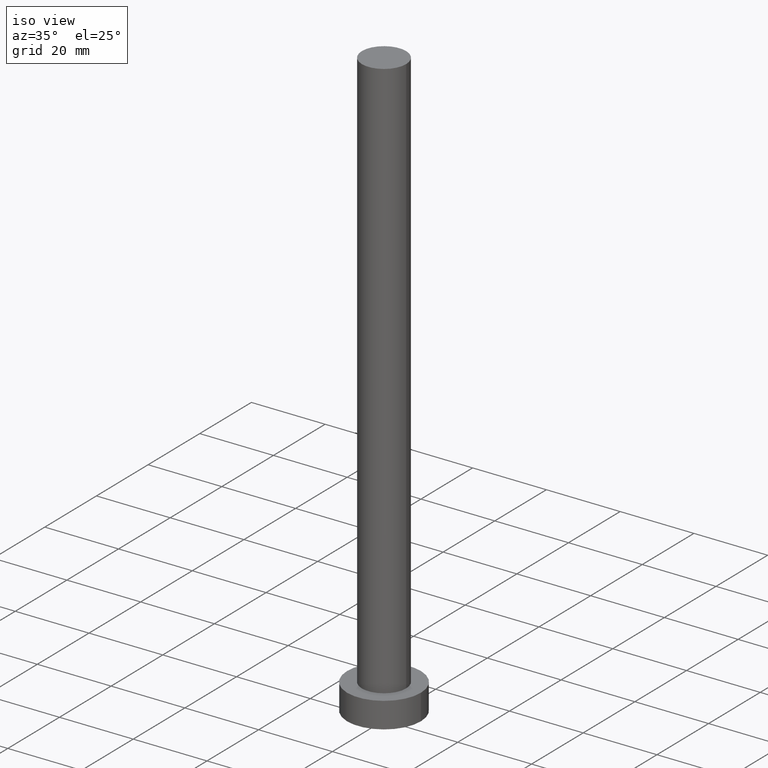
[diagram: clean part render]
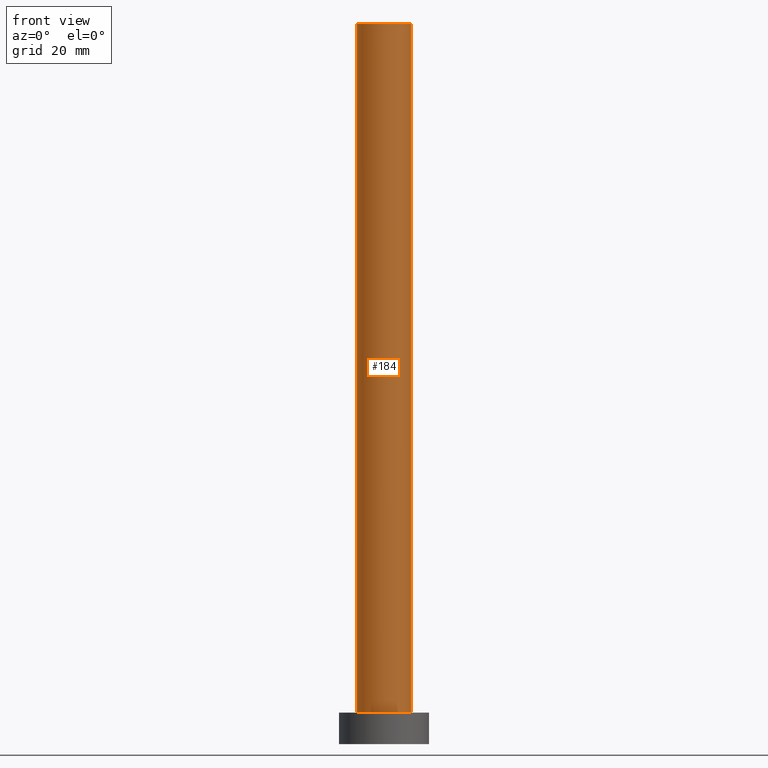
[diagram: tour spotlight — one face highlighted and labeled with its STEP entity id]
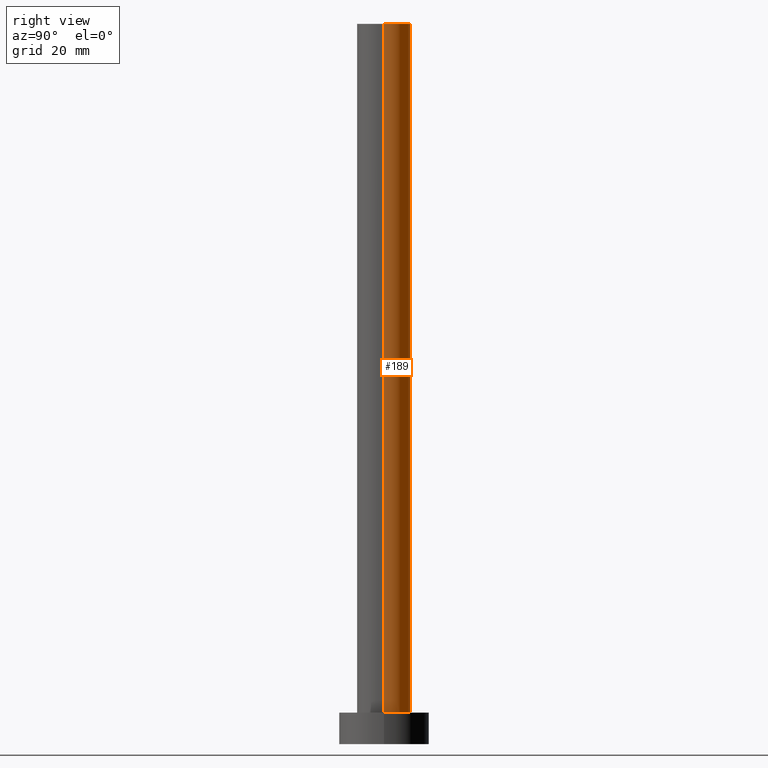
[diagram: tour spotlight — one face highlighted and labeled with its STEP entity id]
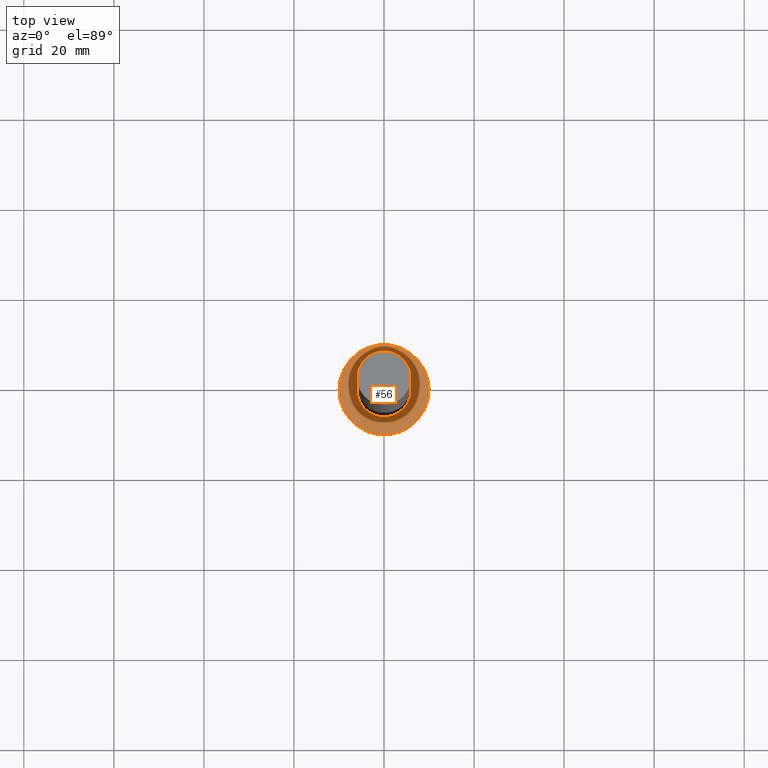
[diagram: tour spotlight — one face highlighted and labeled with its STEP entity id]
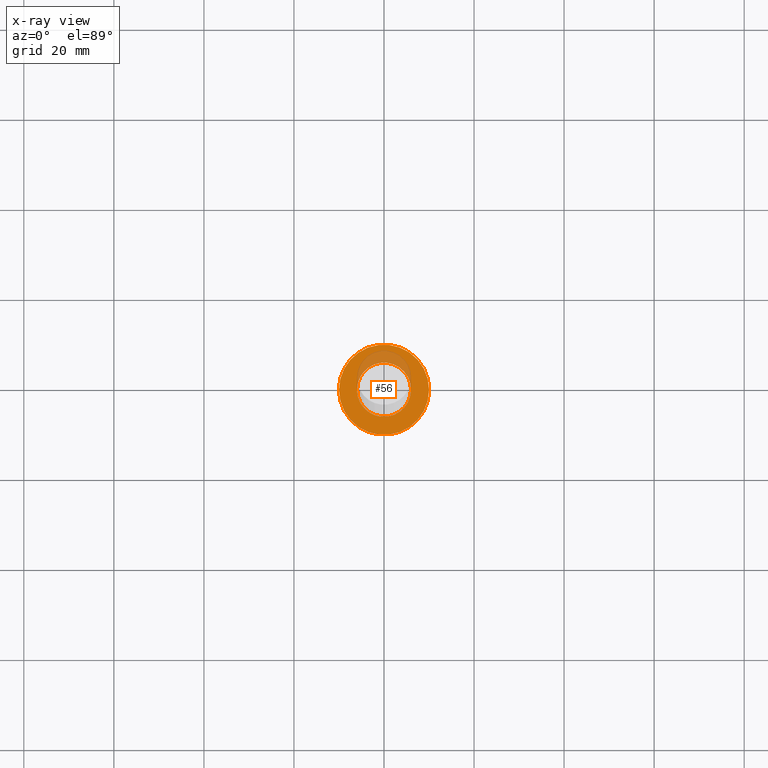
[diagram: x-ray of the same camera — body ghosted, this tour face saturated]
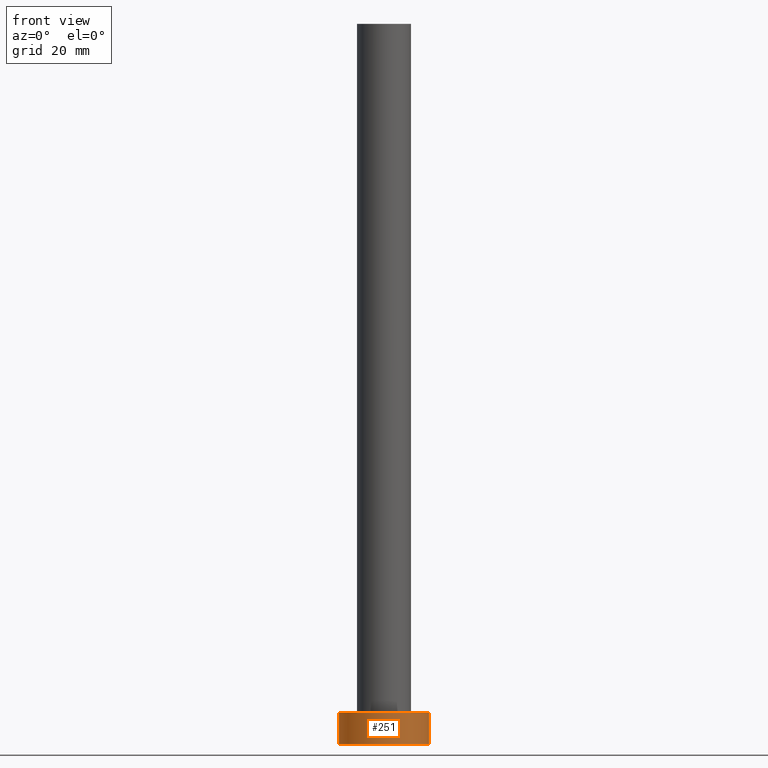
[diagram: tour spotlight — one face highlighted and labeled with its STEP entity id]
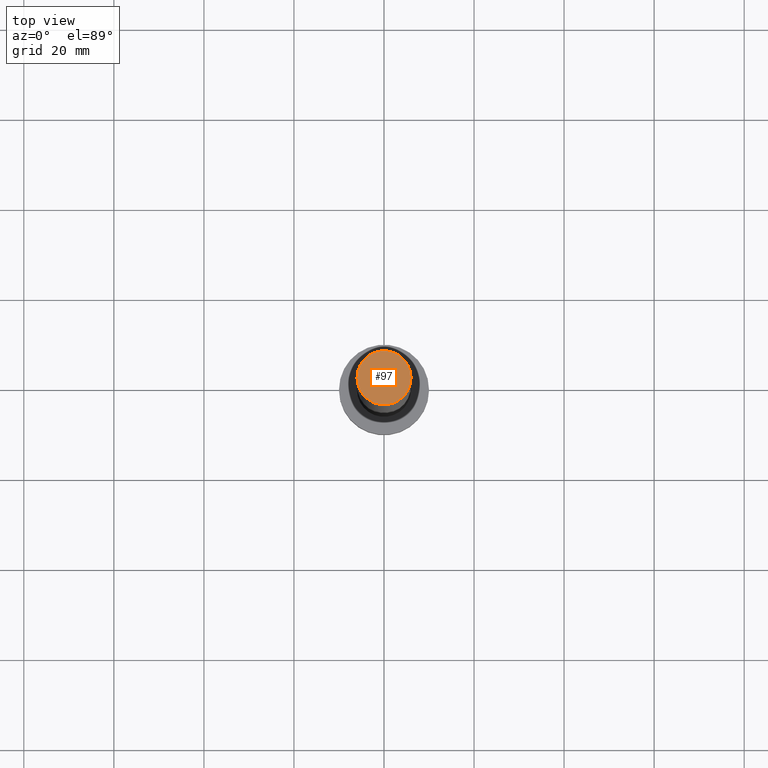
[diagram: tour spotlight — one face highlighted and labeled with its STEP entity id]
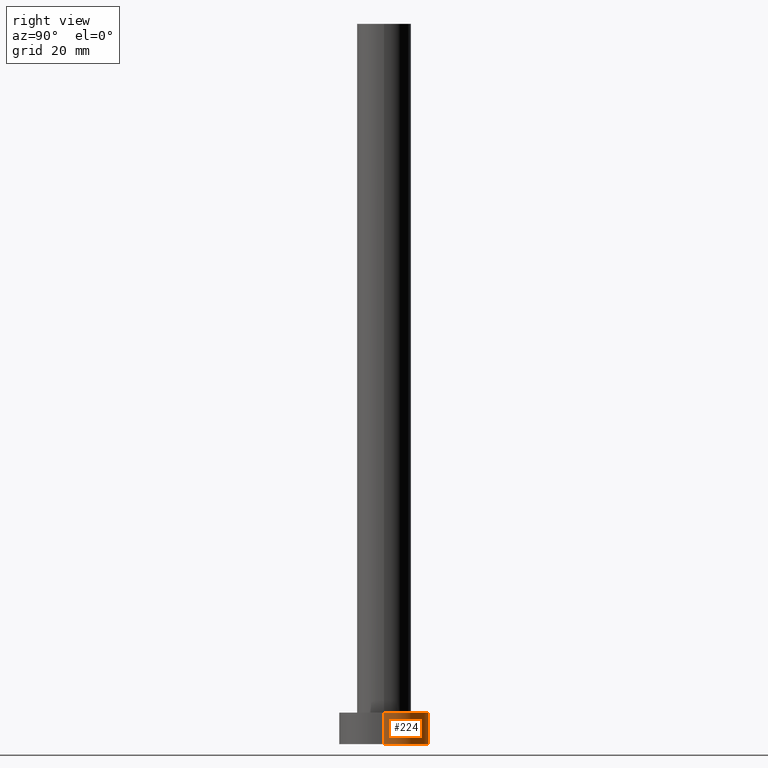
[diagram: tour spotlight — one face highlighted and labeled with its STEP entity id]
A machine part: a face-by-face anatomy tour. The part has 7 B-rep faces; the first image is the clean iso view, then the 6 largest visible faces are spotlighted one at a time (largest first), each with its STEP entity span.

Face 1 — front view, entity #184. In plain terms, the highlighted cylindrical surface (edge-blend (fillet) strip) has radius 6 mm, axis along (-0, -0, -1).
Definition (entity closure, byte-faithful):
#13 = EDGE_CURVE ( 'NONE', #92, #37, #130, .T. ) ;
#19 = DIRECTION ( 'NONE',  ( 1.000000000000000000, 0.000000000000000000, 0.000000000000000000 ) ) ;
#30 = CIRCLE ( 'NONE', #174, 6.000000000000000888 ) ;
#37 = VERTEX_POINT ( 'NONE', #96 ) ;
#42 = DIRECTION ( 'NONE',  ( -0.000000000000000000, -0.000000000000000000, -1.000000000000000000 ) ) ;
#59 = CARTESIAN_POINT ( 'NONE',  ( 0.000000000000000000, 0.000000000000000000, 160.0000000000000000 ) ) ;
#60 = CARTESIAN_POINT ( 'NONE',  ( 0.000000000000000000, 0.000000000000000000, 7.000000000000000000 ) ) ;
#63 = DIRECTION ( 'NONE',  ( 1.000000000000000000, 0.000000000000000000, 0.000000000000000000 ) ) ;
#64 = LINE ( 'NONE', #154, #65 ) ;
#65 = VECTOR ( 'NONE', #42, 1000.000000000000000 ) ;
#66 = EDGE_CURVE ( 'NONE', #92, #206, #30, .T. ) ;
#71 = ORIENTED_EDGE ( 'NONE', *, *, #146, .F. ) ;
#73 = VERTEX_POINT ( 'NONE', #162 ) ;
#92 = VERTEX_POINT ( 'NONE', #197 ) ;
#94 = DIRECTION ( 'NONE',  ( -0.000000000000000000, -0.000000000000000000, -1.000000000000000000 ) ) ;
#96 = CARTESIAN_POINT ( 'NONE',  ( -6.000000000000000888, 0.000000000000000000, 7.000000000000000000 ) ) ;
#109 = ORIENTED_EDGE ( 'NONE', *, *, #66, .F. ) ;
#110 = EDGE_CURVE ( 'NONE', #37, #73, #192, .T. ) ;
#111 = ORIENTED_EDGE ( 'NONE', *, *, #13, .T. ) ;
#112 = VECTOR ( 'NONE', #94, 1000.000000000000000 ) ;
#117 = AXIS2_PLACEMENT_3D ( 'NONE', #60, #215, #63 ) ;
#121 = CYLINDRICAL_SURFACE ( 'NONE', #205, 6.000000000000000888 ) ;
#130 = LINE ( 'NONE', #172, #112 ) ;
#136 = DIRECTION ( 'NONE',  ( -1.000000000000000000, 0.000000000000000000, 0.000000000000000000 ) ) ;
#140 = CARTESIAN_POINT ( 'NONE',  ( 0.000000000000000000, 0.000000000000000000, 160.0000000000000000 ) ) ;
#146 = EDGE_CURVE ( 'NONE', #206, #73, #64, .T. ) ;
#154 = CARTESIAN_POINT ( 'NONE',  ( 6.000000000000000888, 7.347880794884120722E-16, 160.0000000000000000 ) ) ;
#162 = CARTESIAN_POINT ( 'NONE',  ( 6.000000000000000888, 7.347880794884120722E-16, 7.000000000000000000 ) ) ;
#172 = CARTESIAN_POINT ( 'NONE',  ( -6.000000000000000888, 0.000000000000000000, 160.0000000000000000 ) ) ;
#173 = EDGE_LOOP ( 'NONE', ( #71, #109, #111, #190 ) ) ;
#174 = AXIS2_PLACEMENT_3D ( 'NONE', #59, #232, #19 ) ;
#179 = DIRECTION ( 'NONE',  ( -0.000000000000000000, -0.000000000000000000, -1.000000000000000000 ) ) ;
#184 = ADVANCED_FACE ( 'NONE', ( #200 ), #121, .T. ) ;
#190 = ORIENTED_EDGE ( 'NONE', *, *, #110, .T. ) ;
#192 = CIRCLE ( 'NONE', #117, 6.000000000000000888 ) ;
#197 = CARTESIAN_POINT ( 'NONE',  ( -6.000000000000000888, 0.000000000000000000, 160.0000000000000000 ) ) ;
#200 = FACE_OUTER_BOUND ( 'NONE', #173, .T. ) ;
#205 = AXIS2_PLACEMENT_3D ( 'NONE', #140, #179, #136 ) ;
#206 = VERTEX_POINT ( 'NONE', #236 ) ;
#215 = DIRECTION ( 'NONE',  ( 0.000000000000000000, 0.000000000000000000, 1.000000000000000000 ) ) ;
#232 = DIRECTION ( 'NONE',  ( 0.000000000000000000, 0.000000000000000000, 1.000000000000000000 ) ) ;
#236 = CARTESIAN_POINT ( 'NONE',  ( 6.000000000000000888, 7.347880794884120722E-16, 160.0000000000000000 ) ) ;

Face 2 — right view, entity #189. In plain terms, the highlighted cylindrical surface (edge-blend (fillet) strip) has radius 6 mm, axis along (-0, -0, -1).
Definition (entity closure, byte-faithful):
#4 = EDGE_CURVE ( 'NONE', #73, #37, #68, .T. ) ;
#13 = EDGE_CURVE ( 'NONE', #92, #37, #130, .T. ) ;
#22 = CIRCLE ( 'NONE', #55, 6.000000000000000888 ) ;
#37 = VERTEX_POINT ( 'NONE', #96 ) ;
#38 = DIRECTION ( 'NONE',  ( 0.000000000000000000, 0.000000000000000000, 1.000000000000000000 ) ) ;
#42 = DIRECTION ( 'NONE',  ( -0.000000000000000000, -0.000000000000000000, -1.000000000000000000 ) ) ;
#48 = AXIS2_PLACEMENT_3D ( 'NONE', #99, #176, #253 ) ;
#50 = EDGE_LOOP ( 'NONE', ( #249, #230, #54, #148 ) ) ;
#51 = DIRECTION ( 'NONE',  ( 0.000000000000000000, 0.000000000000000000, 1.000000000000000000 ) ) ;
#54 = ORIENTED_EDGE ( 'NONE', *, *, #4, .T. ) ;
#55 = AXIS2_PLACEMENT_3D ( 'NONE', #238, #38, #115 ) ;
#62 = FACE_OUTER_BOUND ( 'NONE', #50, .T. ) ;
#64 = LINE ( 'NONE', #154, #65 ) ;
#65 = VECTOR ( 'NONE', #42, 1000.000000000000000 ) ;
#68 = CIRCLE ( 'NONE', #143, 6.000000000000000888 ) ;
#73 = VERTEX_POINT ( 'NONE', #162 ) ;
#92 = VERTEX_POINT ( 'NONE', #197 ) ;
#94 = DIRECTION ( 'NONE',  ( -0.000000000000000000, -0.000000000000000000, -1.000000000000000000 ) ) ;
#96 = CARTESIAN_POINT ( 'NONE',  ( -6.000000000000000888, 0.000000000000000000, 7.000000000000000000 ) ) ;
#98 = CYLINDRICAL_SURFACE ( 'NONE', #48, 6.000000000000000888 ) ;
#99 = CARTESIAN_POINT ( 'NONE',  ( 0.000000000000000000, 0.000000000000000000, 160.0000000000000000 ) ) ;
#112 = VECTOR ( 'NONE', #94, 1000.000000000000000 ) ;
#115 = DIRECTION ( 'NONE',  ( 1.000000000000000000, 0.000000000000000000, 0.000000000000000000 ) ) ;
#130 = LINE ( 'NONE', #172, #112 ) ;
#143 = AXIS2_PLACEMENT_3D ( 'NONE', #149, #51, #186 ) ;
#144 = EDGE_CURVE ( 'NONE', #206, #92, #22, .T. ) ;
#146 = EDGE_CURVE ( 'NONE', #206, #73, #64, .T. ) ;
#148 = ORIENTED_EDGE ( 'NONE', *, *, #13, .F. ) ;
#149 = CARTESIAN_POINT ( 'NONE',  ( 0.000000000000000000, 0.000000000000000000, 7.000000000000000000 ) ) ;
#154 = CARTESIAN_POINT ( 'NONE',  ( 6.000000000000000888, 7.347880794884120722E-16, 160.0000000000000000 ) ) ;
#162 = CARTESIAN_POINT ( 'NONE',  ( 6.000000000000000888, 7.347880794884120722E-16, 7.000000000000000000 ) ) ;
#172 = CARTESIAN_POINT ( 'NONE',  ( -6.000000000000000888, 0.000000000000000000, 160.0000000000000000 ) ) ;
#176 = DIRECTION ( 'NONE',  ( -0.000000000000000000, -0.000000000000000000, -1.000000000000000000 ) ) ;
#186 = DIRECTION ( 'NONE',  ( 1.000000000000000000, 0.000000000000000000, 0.000000000000000000 ) ) ;
#189 = ADVANCED_FACE ( 'NONE', ( #62 ), #98, .T. ) ;
#197 = CARTESIAN_POINT ( 'NONE',  ( -6.000000000000000888, 0.000000000000000000, 160.0000000000000000 ) ) ;
#206 = VERTEX_POINT ( 'NONE', #236 ) ;
#230 = ORIENTED_EDGE ( 'NONE', *, *, #146, .T. ) ;
#236 = CARTESIAN_POINT ( 'NONE',  ( 6.000000000000000888, 7.347880794884120722E-16, 160.0000000000000000 ) ) ;
#238 = CARTESIAN_POINT ( 'NONE',  ( 0.000000000000000000, 0.000000000000000000, 160.0000000000000000 ) ) ;
#249 = ORIENTED_EDGE ( 'NONE', *, *, #144, .F. ) ;
#253 = DIRECTION ( 'NONE',  ( -1.000000000000000000, 0.000000000000000000, 0.000000000000000000 ) ) ;

Face 3 — top view, entity #56. An x-ray twin of the same camera follows (body ghosted, this face saturated) — the face is partly hidden behind the body. In plain terms, the highlighted planar face has unit normal (0, 0, 1).
Definition (entity closure, byte-faithful):
#4 = EDGE_CURVE ( 'NONE', #73, #37, #68, .T. ) ;
#12 = ORIENTED_EDGE ( 'NONE', *, *, #110, .F. ) ;
#14 = DIRECTION ( 'NONE',  ( 1.000000000000000000, 0.000000000000000000, 0.000000000000000000 ) ) ;
#24 = DIRECTION ( 'NONE',  ( 0.000000000000000000, 0.000000000000000000, 1.000000000000000000 ) ) ;
#37 = VERTEX_POINT ( 'NONE', #96 ) ;
#36 = EDGE_CURVE ( 'NONE', #72, #185, #244, .T. ) ;
#41 = PLANE ( 'NONE',  #165 ) ;
#51 = DIRECTION ( 'NONE',  ( 0.000000000000000000, 0.000000000000000000, 1.000000000000000000 ) ) ;
#56 = ADVANCED_FACE ( 'NONE', ( #103, #123 ), #41, .T. ) ;
#60 = CARTESIAN_POINT ( 'NONE',  ( 0.000000000000000000, 0.000000000000000000, 7.000000000000000000 ) ) ;
#63 = DIRECTION ( 'NONE',  ( 1.000000000000000000, 0.000000000000000000, 0.000000000000000000 ) ) ;
#68 = CIRCLE ( 'NONE', #143, 6.000000000000000888 ) ;
#72 = VERTEX_POINT ( 'NONE', #255 ) ;
#73 = VERTEX_POINT ( 'NONE', #162 ) ;
#74 = EDGE_LOOP ( 'NONE', ( #12, #169 ) ) ;
#77 = DIRECTION ( 'NONE',  ( 1.000000000000000000, 0.000000000000000000, 0.000000000000000000 ) ) ;
#81 = CARTESIAN_POINT ( 'NONE',  ( 0.000000000000000000, 0.000000000000000000, 7.000000000000000000 ) ) ;
#95 = ORIENTED_EDGE ( 'NONE', *, *, #102, .T. ) ;
#96 = CARTESIAN_POINT ( 'NONE',  ( -6.000000000000000888, 0.000000000000000000, 7.000000000000000000 ) ) ;
#102 = EDGE_CURVE ( 'NONE', #185, #72, #220, .T. ) ;
#103 = FACE_BOUND ( 'NONE', #74, .T. ) ;
#110 = EDGE_CURVE ( 'NONE', #37, #73, #192, .T. ) ;
#117 = AXIS2_PLACEMENT_3D ( 'NONE', #60, #215, #63 ) ;
#123 = FACE_OUTER_BOUND ( 'NONE', #210, .T. ) ;
#129 = AXIS2_PLACEMENT_3D ( 'NONE', #81, #254, #77 ) ;
#143 = AXIS2_PLACEMENT_3D ( 'NONE', #149, #51, #186 ) ;
#149 = CARTESIAN_POINT ( 'NONE',  ( 0.000000000000000000, 0.000000000000000000, 7.000000000000000000 ) ) ;
#153 = CARTESIAN_POINT ( 'NONE',  ( 0.000000000000000000, 0.000000000000000000, 7.000000000000000000 ) ) ;
#162 = CARTESIAN_POINT ( 'NONE',  ( 6.000000000000000888, 7.347880794884120722E-16, 7.000000000000000000 ) ) ;
#165 = AXIS2_PLACEMENT_3D ( 'NONE', #153, #24, #198 ) ;
#169 = ORIENTED_EDGE ( 'NONE', *, *, #4, .F. ) ;
#185 = VERTEX_POINT ( 'NONE', #195 ) ;
#186 = DIRECTION ( 'NONE',  ( 1.000000000000000000, 0.000000000000000000, 0.000000000000000000 ) ) ;
#192 = CIRCLE ( 'NONE', #117, 6.000000000000000888 ) ;
#195 = CARTESIAN_POINT ( 'NONE',  ( 10.00000000000000000, 1.224646799147353256E-15, 7.000000000000000000 ) ) ;
#198 = DIRECTION ( 'NONE',  ( 1.000000000000000000, 0.000000000000000000, -0.000000000000000000 ) ) ;
#210 = EDGE_LOOP ( 'NONE', ( #226, #95 ) ) ;
#215 = DIRECTION ( 'NONE',  ( 0.000000000000000000, 0.000000000000000000, 1.000000000000000000 ) ) ;
#216 = DIRECTION ( 'NONE',  ( 0.000000000000000000, 0.000000000000000000, 1.000000000000000000 ) ) ;
#220 = CIRCLE ( 'NONE', #129, 10.00000000000000000 ) ;
#225 = AXIS2_PLACEMENT_3D ( 'NONE', #237, #216, #14 ) ;
#226 = ORIENTED_EDGE ( 'NONE', *, *, #36, .T. ) ;
#237 = CARTESIAN_POINT ( 'NONE',  ( 0.000000000000000000, 0.000000000000000000, 7.000000000000000000 ) ) ;
#244 = CIRCLE ( 'NONE', #225, 10.00000000000000000 ) ;
#254 = DIRECTION ( 'NONE',  ( 0.000000000000000000, 0.000000000000000000, 1.000000000000000000 ) ) ;
#255 = CARTESIAN_POINT ( 'NONE',  ( -10.00000000000000000, 0.000000000000000000, 7.000000000000000000 ) ) ;

Face 4 — front view, entity #251. In plain terms, the highlighted cylindrical surface (partial cylindrical patch) has radius 10 mm, axis along (-0, -0, -1).
Definition (entity closure, byte-faithful):
#6 = ORIENTED_EDGE ( 'NONE', *, *, #193, .T. ) ;
#7 = CIRCLE ( 'NONE', #80, 10.00000000000000000 ) ;
#14 = DIRECTION ( 'NONE',  ( 1.000000000000000000, 0.000000000000000000, 0.000000000000000000 ) ) ;
#29 = EDGE_CURVE ( 'NONE', #108, #170, #7, .T. ) ;
#33 = EDGE_LOOP ( 'NONE', ( #228, #152, #6, #250 ) ) ;
#35 = DIRECTION ( 'NONE',  ( 0.000000000000000000, 0.000000000000000000, 1.000000000000000000 ) ) ;
#36 = EDGE_CURVE ( 'NONE', #72, #185, #244, .T. ) ;
#72 = VERTEX_POINT ( 'NONE', #255 ) ;
#79 = CARTESIAN_POINT ( 'NONE',  ( -10.00000000000000000, 0.000000000000000000, 7.000000000000000000 ) ) ;
#80 = AXIS2_PLACEMENT_3D ( 'NONE', #208, #35, #134 ) ;
#88 = DIRECTION ( 'NONE',  ( -0.000000000000000000, -0.000000000000000000, -1.000000000000000000 ) ) ;
#89 = AXIS2_PLACEMENT_3D ( 'NONE', #245, #88, #168 ) ;
#90 = CYLINDRICAL_SURFACE ( 'NONE', #89, 10.00000000000000000 ) ;
#101 = DIRECTION ( 'NONE',  ( -0.000000000000000000, -0.000000000000000000, -1.000000000000000000 ) ) ;
#108 = VERTEX_POINT ( 'NONE', #178 ) ;
#113 = VECTOR ( 'NONE', #156, 1000.000000000000000 ) ;
#122 = EDGE_CURVE ( 'NONE', #185, #170, #217, .T. ) ;
#125 = CARTESIAN_POINT ( 'NONE',  ( 10.00000000000000000, 1.224646799147353256E-15, 7.000000000000000000 ) ) ;
#133 = VECTOR ( 'NONE', #101, 1000.000000000000000 ) ;
#134 = DIRECTION ( 'NONE',  ( 1.000000000000000000, 0.000000000000000000, 0.000000000000000000 ) ) ;
#152 = ORIENTED_EDGE ( 'NONE', *, *, #36, .F. ) ;
#156 = DIRECTION ( 'NONE',  ( -0.000000000000000000, -0.000000000000000000, -1.000000000000000000 ) ) ;
#160 = LINE ( 'NONE', #79, #113 ) ;
#168 = DIRECTION ( 'NONE',  ( -1.000000000000000000, 0.000000000000000000, 0.000000000000000000 ) ) ;
#170 = VERTEX_POINT ( 'NONE', #213 ) ;
#178 = CARTESIAN_POINT ( 'NONE',  ( -10.00000000000000000, 0.000000000000000000, 0.000000000000000000 ) ) ;
#185 = VERTEX_POINT ( 'NONE', #195 ) ;
#193 = EDGE_CURVE ( 'NONE', #72, #108, #160, .T. ) ;
#195 = CARTESIAN_POINT ( 'NONE',  ( 10.00000000000000000, 1.224646799147353256E-15, 7.000000000000000000 ) ) ;
#208 = CARTESIAN_POINT ( 'NONE',  ( 0.000000000000000000, 0.000000000000000000, 0.000000000000000000 ) ) ;
#213 = CARTESIAN_POINT ( 'NONE',  ( 10.00000000000000000, 1.224646799147353256E-15, 0.000000000000000000 ) ) ;
#216 = DIRECTION ( 'NONE',  ( 0.000000000000000000, 0.000000000000000000, 1.000000000000000000 ) ) ;
#217 = LINE ( 'NONE', #125, #133 ) ;
#223 = FACE_OUTER_BOUND ( 'NONE', #33, .T. ) ;
#225 = AXIS2_PLACEMENT_3D ( 'NONE', #237, #216, #14 ) ;
#228 = ORIENTED_EDGE ( 'NONE', *, *, #122, .F. ) ;
#237 = CARTESIAN_POINT ( 'NONE',  ( 0.000000000000000000, 0.000000000000000000, 7.000000000000000000 ) ) ;
#244 = CIRCLE ( 'NONE', #225, 10.00000000000000000 ) ;
#245 = CARTESIAN_POINT ( 'NONE',  ( 0.000000000000000000, 0.000000000000000000, 7.000000000000000000 ) ) ;
#250 = ORIENTED_EDGE ( 'NONE', *, *, #29, .T. ) ;
#251 = ADVANCED_FACE ( 'NONE', ( #223 ), #90, .T. ) ;
#255 = CARTESIAN_POINT ( 'NONE',  ( -10.00000000000000000, 0.000000000000000000, 7.000000000000000000 ) ) ;

Face 5 — top view, entity #97. In plain terms, the highlighted planar face has unit normal (0, 0, 1).
Definition (entity closure, byte-faithful):
#19 = DIRECTION ( 'NONE',  ( 1.000000000000000000, 0.000000000000000000, 0.000000000000000000 ) ) ;
#21 = DIRECTION ( 'NONE',  ( 1.000000000000000000, 0.000000000000000000, -0.000000000000000000 ) ) ;
#22 = CIRCLE ( 'NONE', #55, 6.000000000000000888 ) ;
#30 = CIRCLE ( 'NONE', #174, 6.000000000000000888 ) ;
#38 = DIRECTION ( 'NONE',  ( 0.000000000000000000, 0.000000000000000000, 1.000000000000000000 ) ) ;
#53 = ORIENTED_EDGE ( 'NONE', *, *, #66, .T. ) ;
#55 = AXIS2_PLACEMENT_3D ( 'NONE', #238, #38, #115 ) ;
#59 = CARTESIAN_POINT ( 'NONE',  ( 0.000000000000000000, 0.000000000000000000, 160.0000000000000000 ) ) ;
#66 = EDGE_CURVE ( 'NONE', #92, #206, #30, .T. ) ;
#84 = PLANE ( 'NONE',  #240 ) ;
#91 = EDGE_LOOP ( 'NONE', ( #53, #131 ) ) ;
#92 = VERTEX_POINT ( 'NONE', #197 ) ;
#97 = ADVANCED_FACE ( 'NONE', ( #119 ), #84, .T. ) ;
#115 = DIRECTION ( 'NONE',  ( 1.000000000000000000, 0.000000000000000000, 0.000000000000000000 ) ) ;
#119 = FACE_OUTER_BOUND ( 'NONE', #91, .T. ) ;
#131 = ORIENTED_EDGE ( 'NONE', *, *, #144, .T. ) ;
#144 = EDGE_CURVE ( 'NONE', #206, #92, #22, .T. ) ;
#174 = AXIS2_PLACEMENT_3D ( 'NONE', #59, #232, #19 ) ;
#177 = DIRECTION ( 'NONE',  ( 0.000000000000000000, 0.000000000000000000, 1.000000000000000000 ) ) ;
#197 = CARTESIAN_POINT ( 'NONE',  ( -6.000000000000000888, 0.000000000000000000, 160.0000000000000000 ) ) ;
#206 = VERTEX_POINT ( 'NONE', #236 ) ;
#232 = DIRECTION ( 'NONE',  ( 0.000000000000000000, 0.000000000000000000, 1.000000000000000000 ) ) ;
#236 = CARTESIAN_POINT ( 'NONE',  ( 6.000000000000000888, 7.347880794884120722E-16, 160.0000000000000000 ) ) ;
#238 = CARTESIAN_POINT ( 'NONE',  ( 0.000000000000000000, 0.000000000000000000, 160.0000000000000000 ) ) ;
#240 = AXIS2_PLACEMENT_3D ( 'NONE', #252, #177, #21 ) ;
#252 = CARTESIAN_POINT ( 'NONE',  ( 0.000000000000000000, 0.000000000000000000, 160.0000000000000000 ) ) ;

Face 6 — right view, entity #224. In plain terms, the highlighted cylindrical surface (partial cylindrical patch) has radius 10 mm, axis along (-0, -0, -1).
Definition (entity closure, byte-faithful):
#9 = ORIENTED_EDGE ( 'NONE', *, *, #122, .T. ) ;
#28 = DIRECTION ( 'NONE',  ( -0.000000000000000000, -0.000000000000000000, -1.000000000000000000 ) ) ;
#34 = ORIENTED_EDGE ( 'NONE', *, *, #102, .F. ) ;
#70 = CARTESIAN_POINT ( 'NONE',  ( 0.000000000000000000, 0.000000000000000000, 7.000000000000000000 ) ) ;
#72 = VERTEX_POINT ( 'NONE', #255 ) ;
#77 = DIRECTION ( 'NONE',  ( 1.000000000000000000, 0.000000000000000000, 0.000000000000000000 ) ) ;
#79 = CARTESIAN_POINT ( 'NONE',  ( -10.00000000000000000, 0.000000000000000000, 7.000000000000000000 ) ) ;
#81 = CARTESIAN_POINT ( 'NONE',  ( 0.000000000000000000, 0.000000000000000000, 7.000000000000000000 ) ) ;
#101 = DIRECTION ( 'NONE',  ( -0.000000000000000000, -0.000000000000000000, -1.000000000000000000 ) ) ;
#102 = EDGE_CURVE ( 'NONE', #185, #72, #220, .T. ) ;
#108 = VERTEX_POINT ( 'NONE', #178 ) ;
#113 = VECTOR ( 'NONE', #156, 1000.000000000000000 ) ;
#114 = EDGE_LOOP ( 'NONE', ( #34, #9, #150, #132 ) ) ;
#122 = EDGE_CURVE ( 'NONE', #185, #170, #217, .T. ) ;
#125 = CARTESIAN_POINT ( 'NONE',  ( 10.00000000000000000, 1.224646799147353256E-15, 7.000000000000000000 ) ) ;
#129 = AXIS2_PLACEMENT_3D ( 'NONE', #81, #254, #77 ) ;
#132 = ORIENTED_EDGE ( 'NONE', *, *, #193, .F. ) ;
#133 = VECTOR ( 'NONE', #101, 1000.000000000000000 ) ;
#138 = FACE_OUTER_BOUND ( 'NONE', #114, .T. ) ;
#142 = DIRECTION ( 'NONE',  ( 1.000000000000000000, 0.000000000000000000, 0.000000000000000000 ) ) ;
#150 = ORIENTED_EDGE ( 'NONE', *, *, #157, .T. ) ;
#156 = DIRECTION ( 'NONE',  ( -0.000000000000000000, -0.000000000000000000, -1.000000000000000000 ) ) ;
#157 = EDGE_CURVE ( 'NONE', #170, #108, #231, .T. ) ;
#160 = LINE ( 'NONE', #79, #113 ) ;
#170 = VERTEX_POINT ( 'NONE', #213 ) ;
#171 = AXIS2_PLACEMENT_3D ( 'NONE', #234, #191, #142 ) ;
#178 = CARTESIAN_POINT ( 'NONE',  ( -10.00000000000000000, 0.000000000000000000, 0.000000000000000000 ) ) ;
#183 = DIRECTION ( 'NONE',  ( -1.000000000000000000, 0.000000000000000000, 0.000000000000000000 ) ) ;
#185 = VERTEX_POINT ( 'NONE', #195 ) ;
#191 = DIRECTION ( 'NONE',  ( 0.000000000000000000, 0.000000000000000000, 1.000000000000000000 ) ) ;
#193 = EDGE_CURVE ( 'NONE', #72, #108, #160, .T. ) ;
#195 = CARTESIAN_POINT ( 'NONE',  ( 10.00000000000000000, 1.224646799147353256E-15, 7.000000000000000000 ) ) ;
#203 = AXIS2_PLACEMENT_3D ( 'NONE', #70, #28, #183 ) ;
#213 = CARTESIAN_POINT ( 'NONE',  ( 10.00000000000000000, 1.224646799147353256E-15, 0.000000000000000000 ) ) ;
#217 = LINE ( 'NONE', #125, #133 ) ;
#220 = CIRCLE ( 'NONE', #129, 10.00000000000000000 ) ;
#222 = CYLINDRICAL_SURFACE ( 'NONE', #203, 10.00000000000000000 ) ;
#224 = ADVANCED_FACE ( 'NONE', ( #138 ), #222, .T. ) ;
#231 = CIRCLE ( 'NONE', #171, 10.00000000000000000 ) ;
#234 = CARTESIAN_POINT ( 'NONE',  ( 0.000000000000000000, 0.000000000000000000, 0.000000000000000000 ) ) ;
#254 = DIRECTION ( 'NONE',  ( 0.000000000000000000, 0.000000000000000000, 1.000000000000000000 ) ) ;
#255 = CARTESIAN_POINT ( 'NONE',  ( -10.00000000000000000, 0.000000000000000000, 7.000000000000000000 ) ) ;